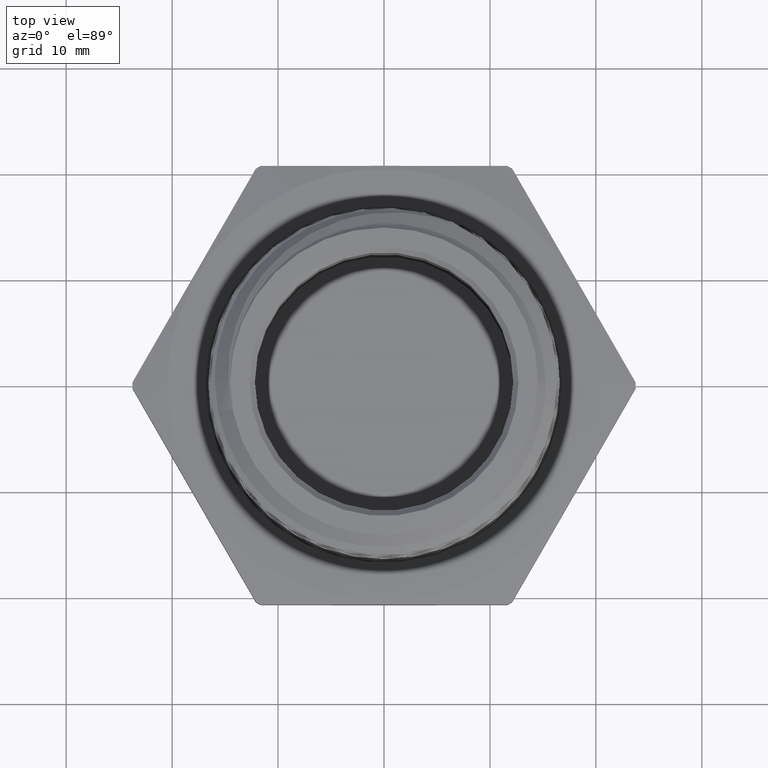
[diagram: clean part render]
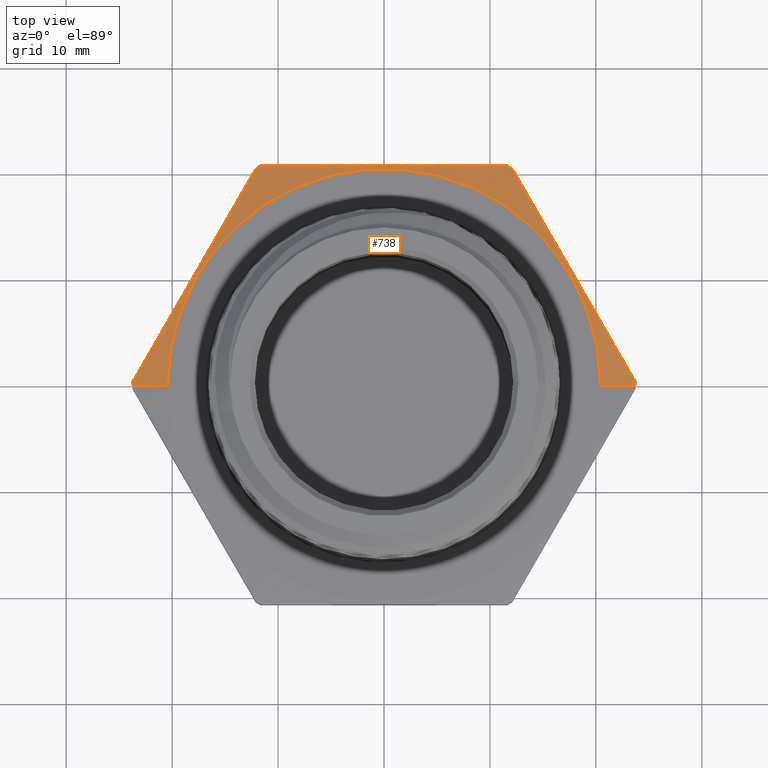
[diagram: same view with one face highlighted and labeled with its STEP entity id]
A machine part, top view. The second image highlights one B-rep face of the part: STEP entity #738.
In plain terms, the highlighted conical surface has half-angle 78 deg.
Its self-contained STEP definition (entity closure, byte-faithful):
#738 = ADVANCED_FACE ( 'NONE', ( #5991 ), #5994, .T. ) ;
#761 = B_SPLINE_CURVE_WITH_KNOTS ( 'NONE', 3,
 ( #5679, #5678, #5627, #5680, #5681, #5682, #5683, #5684, #5685 ),
 .UNSPECIFIED., .F., .F.,
 ( 4, 2, 1, 2, 4 ),
 ( 1.919160924745335100E-006, 0.005823887315075458600, 0.01164585546922617500, 0.01746782362337689200, 0.02328979177752760900 ),
 .UNSPECIFIED. ) ;
#782 = EDGE_CURVE ( 'NONE', #2375, #2389, #6005, .T. ) ;
#784 = EDGE_CURVE ( 'NONE', #2378, #2375, #761, .T. ) ;
#785 = EDGE_CURVE ( 'NONE', #2374, #2378, #6010, .T. ) ;
#786 = EDGE_CURVE ( 'NONE', #1581, #1673, #6011, .T. ) ;
#980 = AXIS2_PLACEMENT_3D ( 'NONE', #1850, #1851, #1849 ) ;
#992 = AXIS2_PLACEMENT_3D ( 'NONE', #5628, #5629, #5630 ) ;
#993 = AXIS2_PLACEMENT_3D ( 'NONE', #5688, #5689, #5690 ) ;
#1376 = CARTESIAN_POINT ( 'NONE',  ( 2.509973095904768000E-017, 0.0000000000000000000, 0.1999999999999999300 ) ) ;
#1377 = DIRECTION ( 'NONE',  ( -1.254986547952384500E-016, -0.0000000000000000000, -1.000000000000000000 ) ) ;
#1378 = DIRECTION ( 'NONE',  ( -1.000000000000000000, 0.0000000000000000000, 1.272599997048570100E-016 ) ) ;
#1396 = CARTESIAN_POINT ( 'NONE',  ( -0.8049999999999998300, 0.0000000000000000000, 0.2000000000000000100 ) ) ;
#1398 = CARTESIAN_POINT ( 'NONE',  ( 0.8049999999999998300, 9.858406733136191200E-017, 0.1999999999999998200 ) ) ;
#1409 = CARTESIAN_POINT ( 'NONE',  ( 0.8049999999999998300, 9.858406733136191200E-017, 0.1999999999999998200 ) ) ;
#1419 = CARTESIAN_POINT ( 'NONE',  ( -0.9350220487359204300, 0.01049430539224316700, 0.1723504429143089500 ) ) ;
#1429 = CARTESIAN_POINT ( 'NONE',  ( -0.4765993594327143600, 0.8045056946077572300, 0.1723504429143089300 ) ) ;
#1431 = CARTESIAN_POINT ( 'NONE',  ( -0.9350809387790897100, 0.0000000000000000000, 0.1723504429143089500 ) ) ;
#1433 = DIRECTION ( 'NONE',  ( 0.9781476007338069100, 1.197885328332319900E-016, -0.2079116908177528500 ) ) ;
#1435 = CARTESIAN_POINT ( 'NONE',  ( 0.4584226893032061200, 0.8149999999999999500, 0.1723504429143087900 ) ) ;
#1452 = CARTESIAN_POINT ( 'NONE',  ( 0.9350220487359204300, 0.01049430539224323700, 0.1723504429143087600 ) ) ;
#1453 = CARTESIAN_POINT ( 'NONE',  ( -0.4584226893032061200, 0.8149999999999999500, 0.1723504429143089300 ) ) ;
#1455 = CARTESIAN_POINT ( 'NONE',  ( 0.4765993594327143100, 0.8045056946077574500, 0.1723504429143087900 ) ) ;
#1466 = CARTESIAN_POINT ( 'NONE',  ( 0.9350809387790897100, 1.145143878619514100E-016, 0.1723504429143087600 ) ) ;
#1481 = CARTESIAN_POINT ( 'NONE',  ( -0.8968201579606534000, 0.07666192116020265100, 0.1803121513787769900 ) ) ;
#1482 = CARTESIAN_POINT ( 'NONE',  ( -0.9350220487359204300, 0.01049430539224316700, 0.1723504429143089500 ) ) ;
#1484 = CARTESIAN_POINT ( 'NONE',  ( -0.8586182671853861400, 0.1428295369281621400, 0.1867569098631997600 ) ) ;
#1485 = CARTESIAN_POINT ( 'NONE',  ( -0.7822144856348519600, 0.2751647684640811700, 0.1955505306662888000 ) ) ;
#1486 = CARTESIAN_POINT ( 'NONE',  ( -0.7058107040843175600, 0.4075000000000005300, 0.2001983381003109900 ) ) ;
#1487 = CARTESIAN_POINT ( 'NONE',  ( -0.6294069225337833900, 0.5398352315359193900, 0.1955505306662888300 ) ) ;
#1488 = CARTESIAN_POINT ( 'NONE',  ( -0.5530031409832487600, 0.6721704630718383600, 0.1867569098631997600 ) ) ;
#1489 = CARTESIAN_POINT ( 'NONE',  ( -0.5148012502079817300, 0.7383380788397983000, 0.1803121513787769600 ) ) ;
#1490 = CARTESIAN_POINT ( 'NONE',  ( -0.4765993594327143600, 0.8045056946077572300, 0.1723504429143089300 ) ) ;
#1491 = CARTESIAN_POINT ( 'NONE',  ( -0.3820727360291162900, 0.8149999999999997200, 0.1803065421663073400 ) ) ;
#1492 = CARTESIAN_POINT ( 'NONE',  ( -0.4584226893032061200, 0.8149999999999999500, 0.1723504429143089300 ) ) ;
#1493 = CARTESIAN_POINT ( 'NONE',  ( 2.162974873910929900E-017, 0.0000000000000000000, 0.1723504429143088700 ) ) ;
#1494 = DIRECTION ( 'NONE',  ( -1.254986547952384500E-016, -0.0000000000000000000, -1.000000000000000000 ) ) ;
#1495 = DIRECTION ( 'NONE',  ( -1.000000000000000000, 0.0000000000000000000, 1.095566121753788100E-016 ) ) ;
#1497 = CARTESIAN_POINT ( 'NONE',  ( -0.3054378654914722800, 0.8149999999999997200, 0.1867722747430927700 ) ) ;
#1498 = CARTESIAN_POINT ( 'NONE',  ( -0.1524036573554991600, 0.8149999999999997200, 0.1955685905400195700 ) ) ;
#1499 = CARTESIAN_POINT ( 'NONE',  ( -0.07593328554225366200, 0.8149999999999999500, 0.1978840681878027400 ) ) ;
#1500 = CARTESIAN_POINT ( 'NONE',  ( 0.07690311260575338800, 0.8149999999999997200, 0.1978647392526785800 ) ) ;
#1501 = CARTESIAN_POINT ( 'NONE',  ( 0.1532691551096951300, 0.8149999999999999500, 0.1955306532691248300 ) ) ;
#1502 = CARTESIAN_POINT ( 'NONE',  ( 0.3059085874836959300, 0.8149999999999999500, 0.1867333030325142600 ) ) ;
#1503 = CARTESIAN_POINT ( 'NONE',  ( 0.3821825396903711400, 0.8149999999999999500, 0.1802951000004680600 ) ) ;
#1504 = CARTESIAN_POINT ( 'NONE',  ( 0.4584226893032061200, 0.8149999999999999500, 0.1723504429143087900 ) ) ;
#1532 = CARTESIAN_POINT ( 'NONE',  ( 2.162974873910929900E-017, 0.0000000000000000000, 0.1723504429143088700 ) ) ;
#1533 = DIRECTION ( 'NONE',  ( -1.254986547952384500E-016, -0.0000000000000000000, -1.000000000000000000 ) ) ;
#1534 = DIRECTION ( 'NONE',  ( -1.000000000000000000, 0.0000000000000000000, 1.095566121753788100E-016 ) ) ;
#1554 = EDGE_CURVE ( 'NONE', #1581, #1583, #6152, .T. ) ;
#1581 = VERTEX_POINT ( 'NONE', #1396 ) ;
#1583 = VERTEX_POINT ( 'NONE', #1398 ) ;
#1606 = VERTEX_POINT ( 'NONE', #1419 ) ;
#1654 = VERTEX_POINT ( 'NONE', #1429 ) ;
#1673 = VERTEX_POINT ( 'NONE', #1431 ) ;
#1849 = DIRECTION ( 'NONE',  ( -1.000000000000000000, 0.0000000000000000000, 1.272599997048570100E-016 ) ) ;
#1850 = CARTESIAN_POINT ( 'NONE',  ( 2.509973095904768000E-017, 0.0000000000000000000, 0.1999999999999999300 ) ) ;
#1851 = DIRECTION ( 'NONE',  ( -1.254986547952384500E-016, -0.0000000000000000000, -1.000000000000000000 ) ) ;
#2324 = AXIS2_PLACEMENT_3D ( 'NONE', #1376, #1377, #1378 ) ;
#2326 = AXIS2_PLACEMENT_3D ( 'NONE', #1493, #1494, #1495 ) ;
#2334 = AXIS2_PLACEMENT_3D ( 'NONE', #1532, #1533, #1534 ) ;
#2345 = EDGE_CURVE ( 'NONE', #1583, #2389, #6161, .T. ) ;
#2374 = VERTEX_POINT ( 'NONE', #1435 ) ;
#2375 = VERTEX_POINT ( 'NONE', #1452 ) ;
#2376 = VERTEX_POINT ( 'NONE', #1453 ) ;
#2378 = VERTEX_POINT ( 'NONE', #1455 ) ;
#2389 = VERTEX_POINT ( 'NONE', #1466 ) ;
#4381 = EDGE_LOOP ( 'NONE', ( #4420, #4419, #4418, #4417, #4416, #4415, #4414, #4413, #4412, #4406 ) ) ;
#4406 = ORIENTED_EDGE ( 'NONE', *, *, #786, .F. ) ;
#4412 = ORIENTED_EDGE ( 'NONE', *, *, #6755, .F. ) ;
#4413 = ORIENTED_EDGE ( 'NONE', *, *, #6185, .F. ) ;
#4414 = ORIENTED_EDGE ( 'NONE', *, *, #6186, .F. ) ;
#4415 = ORIENTED_EDGE ( 'NONE', *, *, #6427, .F. ) ;
#4416 = ORIENTED_EDGE ( 'NONE', *, *, #785, .F. ) ;
#4417 = ORIENTED_EDGE ( 'NONE', *, *, #784, .F. ) ;
#4418 = ORIENTED_EDGE ( 'NONE', *, *, #782, .F. ) ;
#4419 = ORIENTED_EDGE ( 'NONE', *, *, #2345, .T. ) ;
#4420 = ORIENTED_EDGE ( 'NONE', *, *, #1554, .T. ) ;
#5627 = CARTESIAN_POINT ( 'NONE',  ( 0.5530031409832484300, 0.6721704630718383600, 0.1867569098631996200 ) ) ;
#5628 = CARTESIAN_POINT ( 'NONE',  ( 2.162974873910929900E-017, 0.0000000000000000000, 0.1723504429143088700 ) ) ;
#5629 = DIRECTION ( 'NONE',  ( -1.254986547952384500E-016, -0.0000000000000000000, -1.000000000000000000 ) ) ;
#5630 = DIRECTION ( 'NONE',  ( -1.000000000000000000, 0.0000000000000000000, 1.095566121753788100E-016 ) ) ;
#5678 = CARTESIAN_POINT ( 'NONE',  ( 0.5148012502079812900, 0.7383380788397983000, 0.1803121513787768200 ) ) ;
#5679 = CARTESIAN_POINT ( 'NONE',  ( 0.4765993594327143100, 0.8045056946077574500, 0.1723504429143087900 ) ) ;
#5680 = CARTESIAN_POINT ( 'NONE',  ( 0.6294069225337828300, 0.5398352315359192800, 0.1955505306662885800 ) ) ;
#5681 = CARTESIAN_POINT ( 'NONE',  ( 0.7058107040843173400, 0.4075000000000002500, 0.2001983381003107100 ) ) ;
#5682 = CARTESIAN_POINT ( 'NONE',  ( 0.7822144856348515200, 0.2751647684640812200, 0.1955505306662885800 ) ) ;
#5683 = CARTESIAN_POINT ( 'NONE',  ( 0.8586182671853862500, 0.1428295369281621100, 0.1867569098631995900 ) ) ;
#5684 = CARTESIAN_POINT ( 'NONE',  ( 0.8968201579606535100, 0.07666192116020262300, 0.1803121513787767900 ) ) ;
#5685 = CARTESIAN_POINT ( 'NONE',  ( 0.9350220487359204300, 0.01049430539224323700, 0.1723504429143087600 ) ) ;
#5686 = DIRECTION ( 'NONE',  ( -0.9781476007338071300, 0.0000000000000000000, -0.2079116908177526300 ) ) ;
#5687 = CARTESIAN_POINT ( 'NONE',  ( -0.8049999999999998300, 0.0000000000000000000, 0.2000000000000000100 ) ) ;
#5688 = CARTESIAN_POINT ( 'NONE',  ( 2.162974873910929900E-017, 0.0000000000000000000, 0.1723504429143088700 ) ) ;
#5689 = DIRECTION ( 'NONE',  ( -1.254986547952384500E-016, -0.0000000000000000000, -1.000000000000000000 ) ) ;
#5690 = DIRECTION ( 'NONE',  ( -1.000000000000000000, 0.0000000000000000000, 1.095566121753788100E-016 ) ) ;
#5940 = B_SPLINE_CURVE_WITH_KNOTS ( 'NONE', 3,
 ( #1482, #1481, #1484, #1485, #1486, #1487, #1488, #1489, #1490 ),
 .UNSPECIFIED., .F., .F.,
 ( 4, 2, 1, 2, 4 ),
 ( 1.919160924798438600E-006, 0.005823887315075513200, 0.01164585546922622900, 0.01746782362337694400, 0.02328979177752765400 ),
 .UNSPECIFIED. ) ;
#5941 = B_SPLINE_CURVE_WITH_KNOTS ( 'NONE', 3,
 ( #1492, #1491, #1497, #1498, #1499, #1500, #1501, #1502, #1503, #1504 ),
 .UNSPECIFIED., .F., .F.,
 ( 4, 2, 2, 2, 4 ),
 ( 0.02014502467727168100, 0.02599016118755717200, 0.03183529769784266400, 0.03768043420812815200, 0.04352557071841364800 ),
 .UNSPECIFIED. ) ;
#5991 = FACE_OUTER_BOUND ( 'NONE', #4381, .T. ) ;
#5994 = CONICAL_SURFACE ( 'NONE', #980, 0.8049999999999998300, 1.361356816555583800 ) ;
#6005 = CIRCLE ( 'NONE', #992, 0.9350809387790897100 ) ;
#6010 = CIRCLE ( 'NONE', #993, 0.9350809387790897100 ) ;
#6011 = LINE ( 'NONE', #5687, #6014 ) ;
#6014 = VECTOR ( 'NONE', #5686, 39.37007874015748900 ) ;
#6152 = CIRCLE ( 'NONE', #2324, 0.8049999999999998300 ) ;
#6155 = CIRCLE ( 'NONE', #2326, 0.9350809387790897100 ) ;
#6160 = VECTOR ( 'NONE', #1433, 39.37007874015748100 ) ;
#6161 = LINE ( 'NONE', #1409, #6160 ) ;
#6166 = CIRCLE ( 'NONE', #2334, 0.9350809387790897100 ) ;
#6185 = EDGE_CURVE ( 'NONE', #1606, #1654, #5940, .T. ) ;
#6186 = EDGE_CURVE ( 'NONE', #1654, #2376, #6155, .T. ) ;
#6427 = EDGE_CURVE ( 'NONE', #2376, #2374, #5941, .T. ) ;
#6755 = EDGE_CURVE ( 'NONE', #1673, #1606, #6166, .T. ) ;